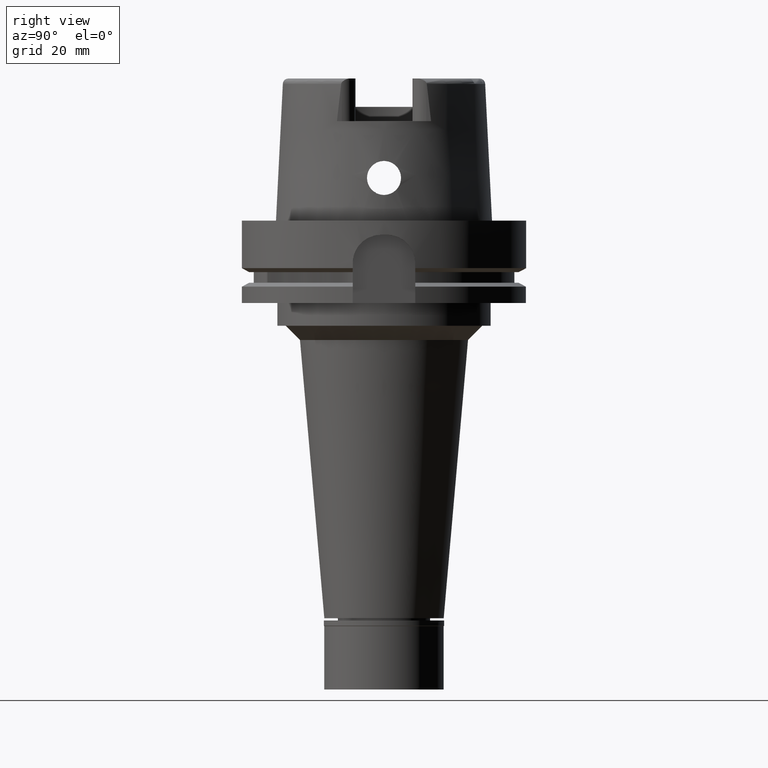
[diagram: clean part render]
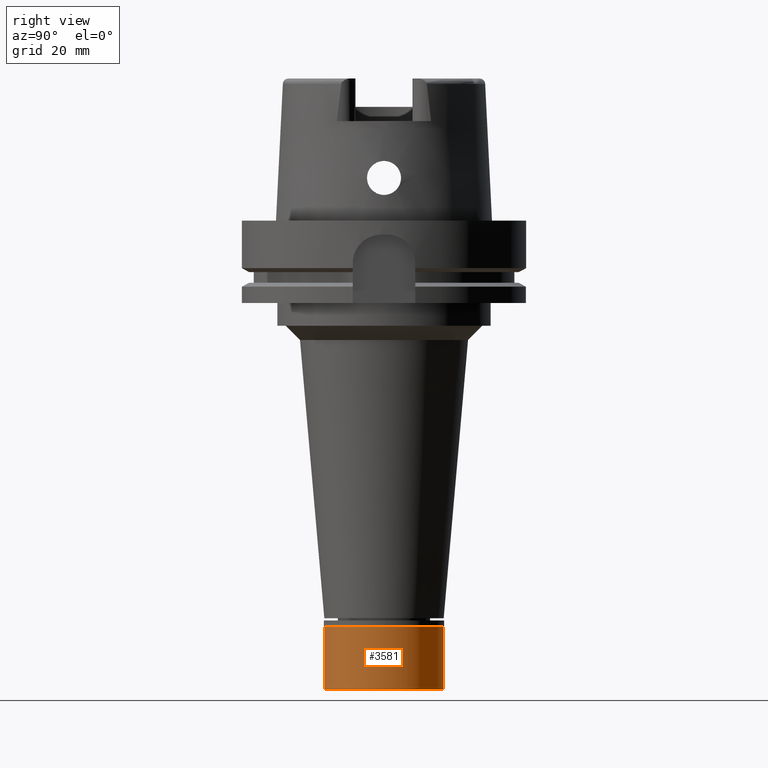
[diagram: same view with one face highlighted and labeled with its STEP entity id]
A machine part, right view. The second image highlights one B-rep face of the part: STEP entity #3581.
In plain terms, the highlighted cylindrical surface (partial cylindrical patch) has radius 21 mm, axis along (0, 0, -1).
Its self-contained STEP definition (entity closure, byte-faithful):
#72 = LINE ( 'NONE', #2245, #1683 ) ;
#255 = DIRECTION ( 'NONE',  ( 0.0000000000000000000, 1.000000000000000000, 0.0000000000000000000 ) ) ;
#350 = CARTESIAN_POINT ( 'NONE',  ( 0.0000000000000000000, 21.00000000000000000, -24.29999999999999716 ) ) ;
#581 = VERTEX_POINT ( 'NONE', #350 ) ;
#614 = VECTOR ( 'NONE', #4922, 1000.000000000000000 ) ;
#656 = CARTESIAN_POINT ( 'NONE',  ( 0.0000000000000000000, 0.0000000000000000000, -24.29999999999999716 ) ) ;
#703 = VERTEX_POINT ( 'NONE', #1762 ) ;
#1126 = CYLINDRICAL_SURFACE ( 'NONE', #2869, 21.00000000000000000 ) ;
#1178 = CARTESIAN_POINT ( 'NONE',  ( 0.0000000000000000000, 0.0000000000000000000, 0.0000000000000000000 ) ) ;
#1683 = VECTOR ( 'NONE', #4895, 1000.000000000000000 ) ;
#1749 = EDGE_CURVE ( 'NONE', #4534, #581, #72, .T. ) ;
#1762 = CARTESIAN_POINT ( 'NONE',  ( 0.0000000000000000000, -21.00000000000000000, -2.000000000000000000 ) ) ;
#1868 = CARTESIAN_POINT ( 'NONE',  ( 0.0000000000000000000, -21.00000000000000000, -2.000000000000000000 ) ) ;
#1875 = CIRCLE ( 'NONE', #3225, 21.00000000000000000 ) ;
#1905 = ORIENTED_EDGE ( 'NONE', *, *, #1749, .F. ) ;
#2245 = CARTESIAN_POINT ( 'NONE',  ( 0.0000000000000000000, 21.00000000000000000, -2.000000000000000000 ) ) ;
#2297 = VERTEX_POINT ( 'NONE', #3351 ) ;
#2331 = CIRCLE ( 'NONE', #3764, 21.00000000000000000 ) ;
#2667 = EDGE_LOOP ( 'NONE', ( #5449, #3506, #4219, #1905 ) ) ;
#2742 = EDGE_CURVE ( 'NONE', #703, #2297, #3041, .T. ) ;
#2869 = AXIS2_PLACEMENT_3D ( 'NONE', #1178, #5478, #3427 ) ;
#3041 = LINE ( 'NONE', #1868, #614 ) ;
#3042 = CARTESIAN_POINT ( 'NONE',  ( 0.0000000000000000000, 21.00000000000000000, -2.000000000000000000 ) ) ;
#3178 = EDGE_CURVE ( 'NONE', #4534, #703, #2331, .T. ) ;
#3225 = AXIS2_PLACEMENT_3D ( 'NONE', #656, #4072, #4889 ) ;
#3247 = CARTESIAN_POINT ( 'NONE',  ( 0.0000000000000000000, 0.0000000000000000000, -2.000000000000000000 ) ) ;
#3351 = CARTESIAN_POINT ( 'NONE',  ( 0.0000000000000000000, -21.00000000000000000, -24.29999999999999716 ) ) ;
#3427 = DIRECTION ( 'NONE',  ( 0.0000000000000000000, -1.000000000000000000, 0.0000000000000000000 ) ) ;
#3506 = ORIENTED_EDGE ( 'NONE', *, *, #2742, .T. ) ;
#3515 = EDGE_CURVE ( 'NONE', #2297, #581, #1875, .T. ) ;
#3581 = ADVANCED_FACE ( 'NONE', ( #4625 ), #1126, .T. ) ;
#3584 = DIRECTION ( 'NONE',  ( 0.0000000000000000000, 0.0000000000000000000, -1.000000000000000000 ) ) ;
#3764 = AXIS2_PLACEMENT_3D ( 'NONE', #3247, #3584, #255 ) ;
#4072 = DIRECTION ( 'NONE',  ( 0.0000000000000000000, 0.0000000000000000000, 1.000000000000000000 ) ) ;
#4219 = ORIENTED_EDGE ( 'NONE', *, *, #3515, .T. ) ;
#4534 = VERTEX_POINT ( 'NONE', #3042 ) ;
#4625 = FACE_OUTER_BOUND ( 'NONE', #2667, .T. ) ;
#4889 = DIRECTION ( 'NONE',  ( 0.0000000000000000000, -1.000000000000000000, 0.0000000000000000000 ) ) ;
#4895 = DIRECTION ( 'NONE',  ( 0.0000000000000000000, 0.0000000000000000000, -1.000000000000000000 ) ) ;
#4922 = DIRECTION ( 'NONE',  ( 0.0000000000000000000, 0.0000000000000000000, -1.000000000000000000 ) ) ;
#5449 = ORIENTED_EDGE ( 'NONE', *, *, #3178, .T. ) ;
#5478 = DIRECTION ( 'NONE',  ( 0.0000000000000000000, 0.0000000000000000000, -1.000000000000000000 ) ) ;